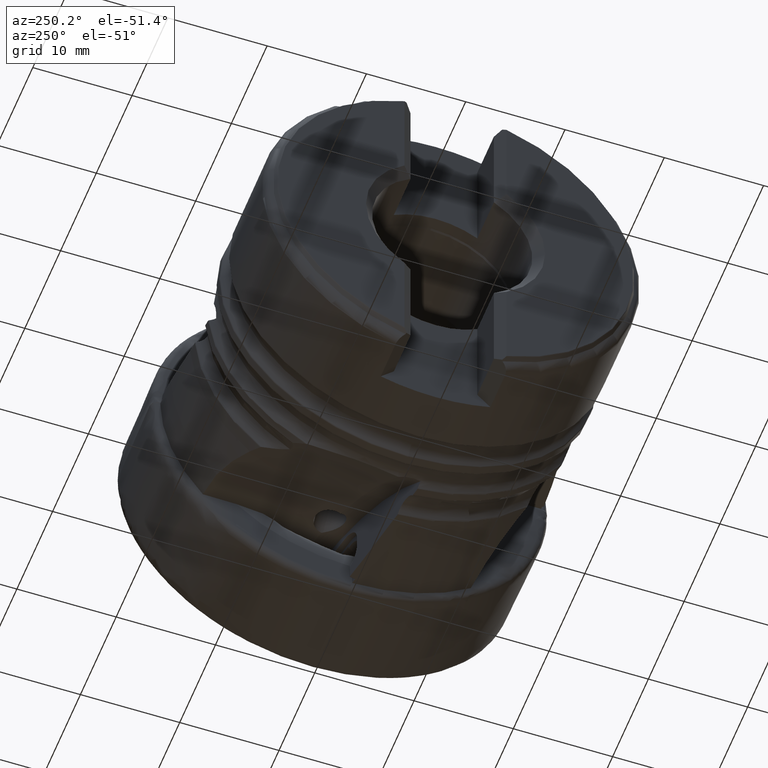
[diagram: clean part render]
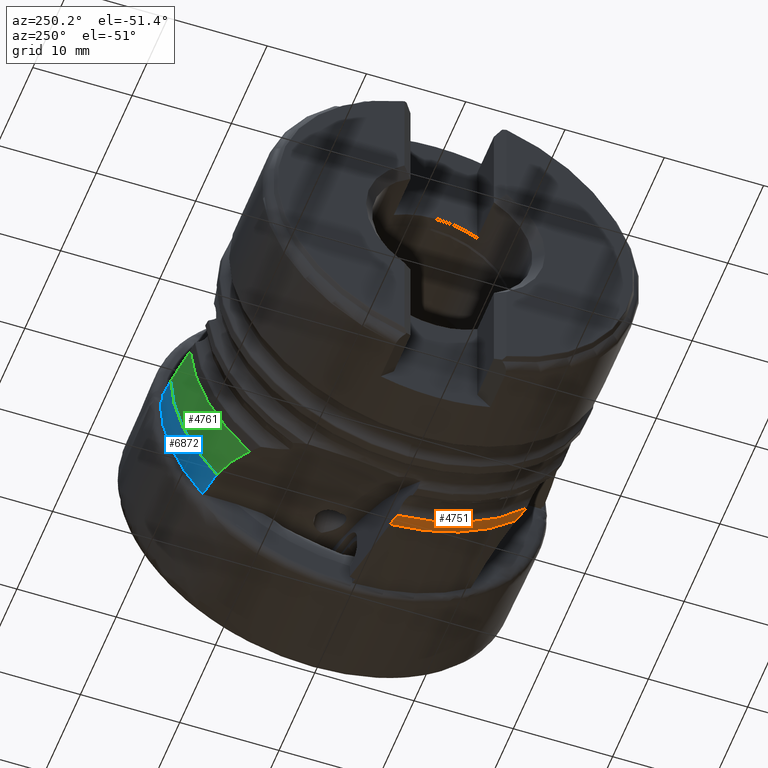
[diagram: same view with three faces highlighted in distinct colors, each labeled with its STEP entity id]
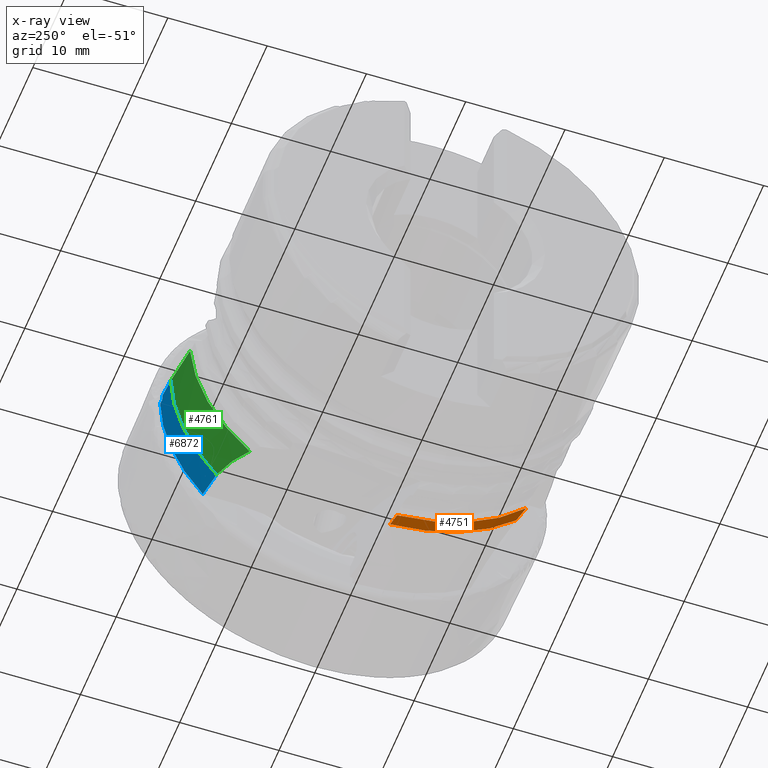
[diagram: x-ray of the same camera — body ghosted, the three highlighted faces saturated]
A machine part, auxiliary view with three faces highlighted in distinct colors.
The next image is the same camera in x-ray (body ghosted, the three faces saturated) — at least one of them is partly hidden behind the body in this view.
Their STEP definitions:

[orange] entity #4751 — the highlighted cylindrical surface (partial cylindrical patch) has radius 19 mm, axis along (1, -0, -0).
#323 =( BOUNDED_CURVE ( )  B_SPLINE_CURVE ( 3, ( #7467, #7475, #7479, #7480 ),
 .UNSPECIFIED., .F., .T. ) 
 B_SPLINE_CURVE_WITH_KNOTS ( ( 4, 4 ),
 ( 1.632327755186949700, 1.646234960916581800 ),
 .UNSPECIFIED. ) 
 CURVE ( )  GEOMETRIC_REPRESENTATION_ITEM ( )  RATIONAL_B_SPLINE_CURVE ( ( 1.000000000000000000, 0.9999838825340097200, 0.9999838825340097200, 1.000000000000000000 ) ) 
 REPRESENTATION_ITEM ( '' )  );
#413 = B_SPLINE_CURVE_WITH_KNOTS ( 'NONE', 3,
 ( #4985, #4984, #4991, #4992 ),
 .UNSPECIFIED., .F., .F.,
 ( 4, 4 ),
 ( 2.884496192805022600E-016, 0.001491721811206858700 ),
 .UNSPECIFIED. ) ;
#1237 = CARTESIAN_POINT ( 'NONE',  ( -19.04021278201284400, -14.43879399349960700, -12.34994850245455900 ) ) ;
#1246 = CARTESIAN_POINT ( 'NONE',  ( -17.79999999999988700, -13.88638631023978800, -12.96797113055026800 ) ) ;
#1508 = AXIS2_PLACEMENT_3D ( 'NONE', #2145, #2146, #2147 ) ;
#1740 = EDGE_LOOP ( 'NONE', ( #6253, #6254, #6255, #6256 ) ) ;
#1784 = CIRCLE ( 'NONE', #1508, 19.00000000000000000 ) ;
#2145 = CARTESIAN_POINT ( 'NONE',  ( -17.80000000000000800, 0.0000000000000000000, 0.0000000000000000000 ) ) ;
#2146 = DIRECTION ( 'NONE',  ( 1.000000000000000000, -0.0000000000000000000, -0.0000000000000000000 ) ) ;
#2147 = DIRECTION ( 'NONE',  ( 0.0000000000000000000, 0.0000000000000000000, -1.000000000000000000 ) ) ;
#2467 = VERTEX_POINT ( 'NONE', #6336 ) ;
#3704 = EDGE_CURVE ( 'NONE', #7879, #2467, #6024, .T. ) ;
#3926 = EDGE_CURVE ( 'NONE', #4891, #2467, #323, .T. ) ;
#3949 = EDGE_CURVE ( 'NONE', #7891, #7879, #413, .T. ) ;
#4513 = AXIS2_PLACEMENT_3D ( 'NONE', #5427, #5428, #5425 ) ;
#4702 = AXIS2_PLACEMENT_3D ( 'NONE', #8166, #8160, #8191 ) ;
#4751 = ADVANCED_FACE ( 'NONE', ( #7675 ), #7677, .T. ) ;
#4891 = VERTEX_POINT ( 'NONE', #5845 ) ;
#4984 = CARTESIAN_POINT ( 'NONE',  ( -18.22712059489980200, -14.06100685796970100, -12.78098363967199100 ) ) ;
#4985 = CARTESIAN_POINT ( 'NONE',  ( -17.79999999999988700, -13.88638631023978800, -12.96797113055026800 ) ) ;
#4991 = CARTESIAN_POINT ( 'NONE',  ( -18.64086182442734700, -14.24548265992907900, -12.57595612681661400 ) ) ;
#4992 = CARTESIAN_POINT ( 'NONE',  ( -19.04021278201284400, -14.43879399349960700, -12.34994850245455900 ) ) ;
#5425 = DIRECTION ( 'NONE',  ( 0.0000000000000000000, 0.0000000000000000000, -1.000000000000000000 ) ) ;
#5427 = CARTESIAN_POINT ( 'NONE',  ( 0.0000000000000000000, 0.0000000000000000000, 0.0000000000000000000 ) ) ;
#5428 = DIRECTION ( 'NONE',  ( 1.000000000000000000, -0.0000000000000000000, -0.0000000000000000000 ) ) ;
#5845 = CARTESIAN_POINT ( 'NONE',  ( -17.80000000000001100, -1.168359556061662400, -18.96404323839618300 ) ) ;
#6024 = CIRCLE ( 'NONE', #4702, 18.99999999999999600 ) ;
#6253 = ORIENTED_EDGE ( 'NONE', *, *, #8395, .F. ) ;
#6254 = ORIENTED_EDGE ( 'NONE', *, *, #3949, .T. ) ;
#6255 = ORIENTED_EDGE ( 'NONE', *, *, #3704, .T. ) ;
#6256 = ORIENTED_EDGE ( 'NONE', *, *, #3926, .F. ) ;
#6336 = CARTESIAN_POINT ( 'NONE',  ( -19.04021278201284400, -1.431974920745523200, -18.94596125369087100 ) ) ;
#7467 = CARTESIAN_POINT ( 'NONE',  ( -17.80000000000001100, -1.168359556061662400, -18.96404323839618300 ) ) ;
#7475 = CARTESIAN_POINT ( 'NONE',  ( -18.21359810948759500, -1.256272548127564300, -18.95862698917700200 ) ) ;
#7479 = CARTESIAN_POINT ( 'NONE',  ( -18.62700903329503200, -1.344145752648901800, -18.95259956379507600 ) ) ;
#7480 = CARTESIAN_POINT ( 'NONE',  ( -19.04021278201284400, -1.431974920745523200, -18.94596125369087100 ) ) ;
#7675 = FACE_OUTER_BOUND ( 'NONE', #1740, .T. ) ;
#7677 = CYLINDRICAL_SURFACE ( 'NONE', #4513, 18.99999999999999600 ) ;
#7879 = VERTEX_POINT ( 'NONE', #1237 ) ;
#7891 = VERTEX_POINT ( 'NONE', #1246 ) ;
#8160 = DIRECTION ( 'NONE',  ( 1.000000000000000000, -0.0000000000000000000, -0.0000000000000000000 ) ) ;
#8166 = CARTESIAN_POINT ( 'NONE',  ( -19.04021278201284400, 0.0000000000000000000, 0.0000000000000000000 ) ) ;
#8191 = DIRECTION ( 'NONE',  ( 0.0000000000000000000, 0.0000000000000000000, -1.000000000000000000 ) ) ;
#8395 = EDGE_CURVE ( 'NONE', #7891, #4891, #1784, .T. ) ;

[blue] entity #6872 — the highlighted cylindrical surface (partial cylindrical patch) has radius 19.19 mm, axis along (1, -0, -0).
#170 =( BOUNDED_CURVE ( )  B_SPLINE_CURVE ( 3, ( #2750, #2749, #2755, #2756 ),
 .UNSPECIFIED., .F., .T. ) 
 B_SPLINE_CURVE_WITH_KNOTS ( ( 4, 4 ),
 ( 4.879946096508054300, 4.910529841143734600 ),
 .UNSPECIFIED. ) 
 CURVE ( )  GEOMETRIC_REPRESENTATION_ITEM ( )  RATIONAL_B_SPLINE_CURVE ( ( 1.000000000000000000, 0.9999220543992648500, 0.9999220543992648500, 1.000000000000000000 ) ) 
 REPRESENTATION_ITEM ( '' )  );
#193 =( BOUNDED_CURVE ( )  B_SPLINE_CURVE ( 3, ( #2918, #2917, #2922, #2923 ),
 .UNSPECIFIED., .F., .F. ) 
 B_SPLINE_CURVE_WITH_KNOTS ( ( 4, 4 ),
 ( 4.699396569869255900, 4.705174450723312400 ),
 .UNSPECIFIED. ) 
 CURVE ( )  GEOMETRIC_REPRESENTATION_ITEM ( )  RATIONAL_B_SPLINE_CURVE ( ( 1.000000000000000000, 0.9999972180096712300, 0.9999972180096712300, 1.000000000000000000 ) ) 
 REPRESENTATION_ITEM ( '' )  );
#208 =( BOUNDED_CURVE ( )  B_SPLINE_CURVE ( 3, ( #2773, #2774, #2779, #2780 ),
 .UNSPECIFIED., .F., .F. ) 
 B_SPLINE_CURVE_WITH_KNOTS ( ( 4, 4 ),
 ( 1.553204992674651200, 1.579067181286334800 ),
 .UNSPECIFIED. ) 
 CURVE ( )  GEOMETRIC_REPRESENTATION_ITEM ( )  RATIONAL_B_SPLINE_CURVE ( ( 1.000000000000000000, 0.9999442630433537100, 0.9999442630433537100, 1.000000000000000000 ) ) 
 REPRESENTATION_ITEM ( '' )  );
#334 = B_SPLINE_CURVE_WITH_KNOTS ( 'NONE', 3,
 ( #2658, #2657, #2663, #2664 ),
 .UNSPECIFIED., .F., .F.,
 ( 4, 4 ),
 ( 0.001019400149041498500, 0.004043675708331880200 ),
 .UNSPECIFIED. ) ;
#429 = VERTEX_POINT ( 'NONE', #4611 ) ;
#432 = VERTEX_POINT ( 'NONE', #4621 ) ;
#1532 = AXIS2_PLACEMENT_3D ( 'NONE', #2666, #2667, #2668 ) ;
#1540 = AXIS2_PLACEMENT_3D ( 'NONE', #2785, #2786, #2787 ) ;
#1756 = ORIENTED_EDGE ( 'NONE', *, *, #8700, .T. ) ;
#1760 = ORIENTED_EDGE ( 'NONE', *, *, #8678, .T. ) ;
#1766 = ORIENTED_EDGE ( 'NONE', *, *, #8707, .F. ) ;
#1768 = ORIENTED_EDGE ( 'NONE', *, *, #8709, .T. ) ;
#1848 = CIRCLE ( 'NONE', #1532, 19.19000000000000500 ) ;
#1875 = CIRCLE ( 'NONE', #1540, 19.19000000000000100 ) ;
#2657 = CARTESIAN_POINT ( 'NONE',  ( -11.07290684424742900, 14.83999124031055100, -12.16720968863656100 ) ) ;
#2658 = CARTESIAN_POINT ( 'NONE',  ( -10.06879529440220400, 14.90371113910799400, -12.08865146664542300 ) ) ;
#2663 = CARTESIAN_POINT ( 'NONE',  ( -12.06701745440180100, 14.73348419144167600, -12.29796588589789900 ) ) ;
#2664 = CARTESIAN_POINT ( 'NONE',  ( -13.05000000000000600, 14.57491494297645200, -12.48310676093903400 ) ) ;
#2666 = CARTESIAN_POINT ( 'NONE',  ( -10.06879529440220200, -2.356328816146938700E-015, 0.0000000000000000000 ) ) ;
#2667 = DIRECTION ( 'NONE',  ( -1.000000000000000000, -1.222035470961051100E-016, 0.0000000000000000000 ) ) ;
#2668 = DIRECTION ( 'NONE',  ( -9.039726294824422600E-017, 1.000000000000000000, 0.0000000000000000000 ) ) ;
#2749 = CARTESIAN_POINT ( 'NONE',  ( -10.67348865849795200, 19.19047227553844300, 0.1419489167554964000 ) ) ;
#2750 = CARTESIAN_POINT ( 'NONE',  ( -10.71520414418880700, 19.18703085549757500, 0.3375602911833915400 ) ) ;
#2755 = CARTESIAN_POINT ( 'NONE',  ( -10.63188594356592500, 19.19092214563115600, -0.05369221080813084400 ) ) ;
#2756 = CARTESIAN_POINT ( 'NONE',  ( -10.59040572763854200, 19.18838036057953300, -0.2493173434118368100 ) ) ;
#2773 = CARTESIAN_POINT ( 'NONE',  ( -10.71520414418880700, 19.18703085549757500, 0.3375602911833915400 ) ) ;
#2774 = CARTESIAN_POINT ( 'NONE',  ( -11.49340083771138800, 19.18994095257217200, 0.1721494777052513000 ) ) ;
#2779 = CARTESIAN_POINT ( 'NONE',  ( -12.27170950353815800, 19.19071192312794900, 0.006714863779130447400 ) ) ;
#2780 = CARTESIAN_POINT ( 'NONE',  ( -13.05000000000000600, 19.18934363825027100, -0.1587158881292548600 ) ) ;
#2785 = CARTESIAN_POINT ( 'NONE',  ( -13.05000000000000600, 0.0000000000000000000, 0.0000000000000000000 ) ) ;
#2786 = DIRECTION ( 'NONE',  ( 1.000000000000000000, -0.0000000000000000000, -0.0000000000000000000 ) ) ;
#2787 = DIRECTION ( 'NONE',  ( 0.0000000000000000000, 0.0000000000000000000, -1.000000000000000000 ) ) ;
#2917 = CARTESIAN_POINT ( 'NONE',  ( -10.41654090023735600, 19.18886053654915000, -0.2123612335040882300 ) ) ;
#2918 = CARTESIAN_POINT ( 'NONE',  ( -10.59040572763854200, 19.18838036057953300, -0.2493173434118368100 ) ) ;
#2922 = CARTESIAN_POINT ( 'NONE',  ( -10.24267027211886300, 19.18923394666357000, -0.1754038906158147900 ) ) ;
#2923 = CARTESIAN_POINT ( 'NONE',  ( -10.06879529440220400, 19.18950058780632200, -0.1384456231919065100 ) ) ;
#3049 = FACE_OUTER_BOUND ( 'NONE', #5703, .T. ) ;
#3052 = CYLINDRICAL_SURFACE ( 'NONE', #8543, 19.19000000000000100 ) ;
#4611 = CARTESIAN_POINT ( 'NONE',  ( -10.06879529440220400, 19.18950058780632200, -0.1384456231919065100 ) ) ;
#4621 = CARTESIAN_POINT ( 'NONE',  ( -10.06879529440220400, 14.90371113910799400, -12.08865146664542300 ) ) ;
#4814 = VERTEX_POINT ( 'NONE', #5697 ) ;
#4816 = VERTEX_POINT ( 'NONE', #5709 ) ;
#4818 = VERTEX_POINT ( 'NONE', #5713 ) ;
#4820 = VERTEX_POINT ( 'NONE', #5717 ) ;
#5697 = CARTESIAN_POINT ( 'NONE',  ( -13.05000000000000600, 14.57491494297645200, -12.48310676093903400 ) ) ;
#5703 = EDGE_LOOP ( 'NONE', ( #7964, #7970, #1760, #1768, #1766, #1756 ) ) ;
#5709 = CARTESIAN_POINT ( 'NONE',  ( -10.71520414418880700, 19.18703085549757500, 0.3375602911833915400 ) ) ;
#5713 = CARTESIAN_POINT ( 'NONE',  ( -10.59040572763854200, 19.18838036057953300, -0.2493173434118368100 ) ) ;
#5717 = CARTESIAN_POINT ( 'NONE',  ( -13.05000000000000600, 19.18934363825027100, -0.1587158881292548600 ) ) ;
#6738 = DIRECTION ( 'NONE',  ( 0.0000000000000000000, 0.0000000000000000000, -1.000000000000000000 ) ) ;
#6739 = CARTESIAN_POINT ( 'NONE',  ( 0.0000000000000000000, 0.0000000000000000000, 0.0000000000000000000 ) ) ;
#6740 = DIRECTION ( 'NONE',  ( 1.000000000000000000, -0.0000000000000000000, -0.0000000000000000000 ) ) ;
#6872 = ADVANCED_FACE ( 'NONE', ( #3049 ), #3052, .T. ) ;
#7964 = ORIENTED_EDGE ( 'NONE', *, *, #8729, .T. ) ;
#7970 = ORIENTED_EDGE ( 'NONE', *, *, #8679, .T. ) ;
#8543 = AXIS2_PLACEMENT_3D ( 'NONE', #6739, #6740, #6738 ) ;
#8678 = EDGE_CURVE ( 'NONE', #432, #4814, #334, .T. ) ;
#8679 = EDGE_CURVE ( 'NONE', #429, #432, #1848, .T. ) ;
#8700 = EDGE_CURVE ( 'NONE', #4816, #4818, #170, .T. ) ;
#8707 = EDGE_CURVE ( 'NONE', #4816, #4820, #208, .T. ) ;
#8709 = EDGE_CURVE ( 'NONE', #4814, #4820, #1875, .T. ) ;
#8729 = EDGE_CURVE ( 'NONE', #4818, #429, #193, .T. ) ;

[green] entity #4761 — the highlighted conical surface has half-angle 2.291 deg.
#288 = B_SPLINE_CURVE_WITH_KNOTS ( 'NONE', 3,
 ( #1927, #1926, #1942, #1943, #1944, #1945 ),
 .UNSPECIFIED., .F., .F.,
 ( 4, 2, 4 ),
 ( 2.060262634408350100E-007, 0.002603759459060485600, 0.005207312891857530900 ),
 .UNSPECIFIED. ) ;
#387 =( BOUNDED_CURVE ( )  B_SPLINE_CURVE ( 3, ( #8572, #8569, #8564, #8573 ),
 .UNSPECIFIED., .F., .T. ) 
 B_SPLINE_CURVE_WITH_KNOTS ( ( 4, 4 ),
 ( 1.768227104399719800, 1.820195321746340900 ),
 .UNSPECIFIED. ) 
 CURVE ( )  GEOMETRIC_REPRESENTATION_ITEM ( )  RATIONAL_B_SPLINE_CURVE ( ( 1.000000000000000000, 0.9997749546946384000, 0.9997749546946384000, 1.000000000000000000 ) ) 
 REPRESENTATION_ITEM ( '' )  );
#1236 = CARTESIAN_POINT ( 'NONE',  ( -17.80000000000004700, 12.96797113055022700, -13.88638631023981600 ) ) ;
#1540 = AXIS2_PLACEMENT_3D ( 'NONE', #2785, #2786, #2787 ) ;
#1875 = CIRCLE ( 'NONE', #1540, 19.19000000000000100 ) ;
#1926 = CARTESIAN_POINT ( 'NONE',  ( -13.89246462813637200, 14.39312281298959900, -12.64355792279007500 ) ) ;
#1927 = CARTESIAN_POINT ( 'NONE',  ( -13.05000000000000600, 14.57491494297645200, -12.48310676093903400 ) ) ;
#1942 = CARTESIAN_POINT ( 'NONE',  ( -14.71121610252648200, 14.17446360283480000, -12.84205834470270200 ) ) ;
#1943 = CARTESIAN_POINT ( 'NONE',  ( -16.29679110481074400, 13.64652902368250100, -13.31106318220987500 ) ) ;
#1944 = CARTESIAN_POINT ( 'NONE',  ( -17.06368272358599800, 13.33748874391553800, -13.58160632517232000 ) ) ;
#1945 = CARTESIAN_POINT ( 'NONE',  ( -17.80000000000004700, 12.96797113055022700, -13.88638631023981600 ) ) ;
#2785 = CARTESIAN_POINT ( 'NONE',  ( -13.05000000000000600, 0.0000000000000000000, 0.0000000000000000000 ) ) ;
#2786 = DIRECTION ( 'NONE',  ( 1.000000000000000000, -0.0000000000000000000, -0.0000000000000000000 ) ) ;
#2787 = DIRECTION ( 'NONE',  ( 0.0000000000000000000, 0.0000000000000000000, -1.000000000000000000 ) ) ;
#3691 = EDGE_CURVE ( 'NONE', #7878, #4844, #6007, .T. ) ;
#3719 = EDGE_CURVE ( 'NONE', #4820, #4844, #387, .T. ) ;
#4554 = AXIS2_PLACEMENT_3D ( 'NONE', #5457, #5458, #5456 ) ;
#4701 = AXIS2_PLACEMENT_3D ( 'NONE', #8175, #8176, #8185 ) ;
#4761 = ADVANCED_FACE ( 'NONE', ( #7694 ), #7699, .T. ) ;
#4814 = VERTEX_POINT ( 'NONE', #5697 ) ;
#4820 = VERTEX_POINT ( 'NONE', #5717 ) ;
#4844 = VERTEX_POINT ( 'NONE', #5758 ) ;
#5456 = DIRECTION ( 'NONE',  ( 0.0000000000000000000, 0.0000000000000000000, -1.000000000000000000 ) ) ;
#5457 = CARTESIAN_POINT ( 'NONE',  ( -13.05000000000000600, 0.0000000000000000000, 0.0000000000000000000 ) ) ;
#5458 = DIRECTION ( 'NONE',  ( 1.000000000000000000, -0.0000000000000000000, -0.0000000000000000000 ) ) ;
#5697 = CARTESIAN_POINT ( 'NONE',  ( -13.05000000000000600, 14.57491494297645200, -12.48310676093903400 ) ) ;
#5717 = CARTESIAN_POINT ( 'NONE',  ( -13.05000000000000600, 19.18934363825027100, -0.1587158881292548600 ) ) ;
#5758 = CARTESIAN_POINT ( 'NONE',  ( -17.80000000000001100, 18.96404323839617900, -1.168359556061860500 ) ) ;
#6007 = CIRCLE ( 'NONE', #4701, 19.00000000000000000 ) ;
#6289 = ORIENTED_EDGE ( 'NONE', *, *, #3719, .F. ) ;
#6290 = ORIENTED_EDGE ( 'NONE', *, *, #8709, .F. ) ;
#6291 = ORIENTED_EDGE ( 'NONE', *, *, #8350, .T. ) ;
#6292 = ORIENTED_EDGE ( 'NONE', *, *, #3691, .T. ) ;
#7694 = FACE_OUTER_BOUND ( 'NONE', #7990, .T. ) ;
#7699 = CONICAL_SURFACE ( 'NONE', #4554, 19.19000000000000100, 0.03997868712329061300 ) ;
#7878 = VERTEX_POINT ( 'NONE', #1236 ) ;
#7990 = EDGE_LOOP ( 'NONE', ( #6289, #6290, #6291, #6292 ) ) ;
#8175 = CARTESIAN_POINT ( 'NONE',  ( -17.80000000000000800, 0.0000000000000000000, 0.0000000000000000000 ) ) ;
#8176 = DIRECTION ( 'NONE',  ( 1.000000000000000000, -0.0000000000000000000, -0.0000000000000000000 ) ) ;
#8185 = DIRECTION ( 'NONE',  ( 0.0000000000000000000, 0.0000000000000000000, -1.000000000000000000 ) ) ;
#8350 = EDGE_CURVE ( 'NONE', #4814, #7878, #288, .T. ) ;
#8564 = CARTESIAN_POINT ( 'NONE',  ( -16.22619359165712500, 19.04772454267637700, -0.8338366771702502300 ) ) ;
#8569 = CARTESIAN_POINT ( 'NONE',  ( -14.64250385638370700, 19.12284158069783800, -0.4972130322884251200 ) ) ;
#8572 = CARTESIAN_POINT ( 'NONE',  ( -13.05000000000000600, 19.18934363825027100, -0.1587158881292548600 ) ) ;
#8573 = CARTESIAN_POINT ( 'NONE',  ( -17.80000000000001100, 18.96404323839617900, -1.168359556061860500 ) ) ;
#8709 = EDGE_CURVE ( 'NONE', #4814, #4820, #1875, .T. ) ;